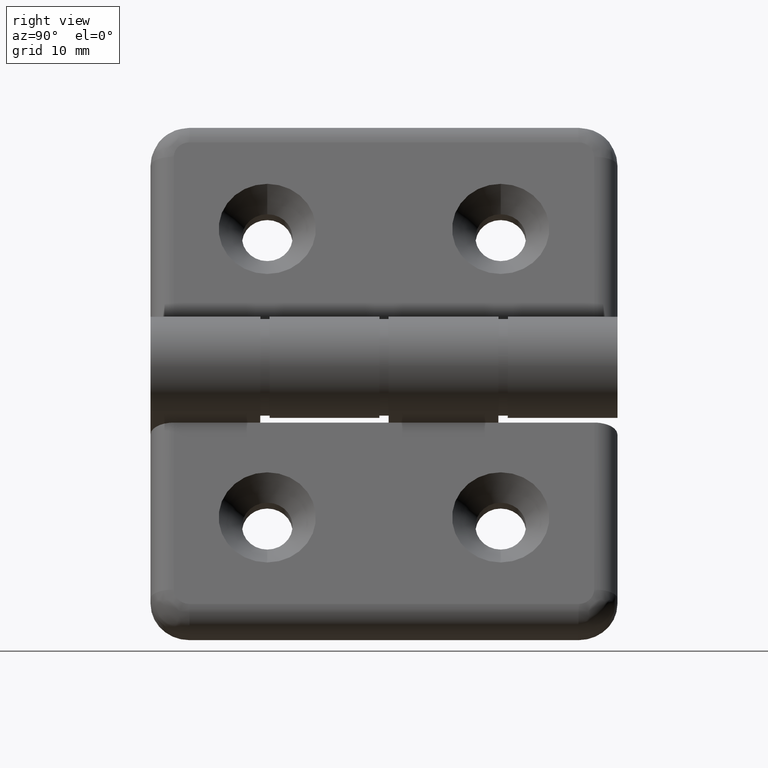
[diagram: clean part render]
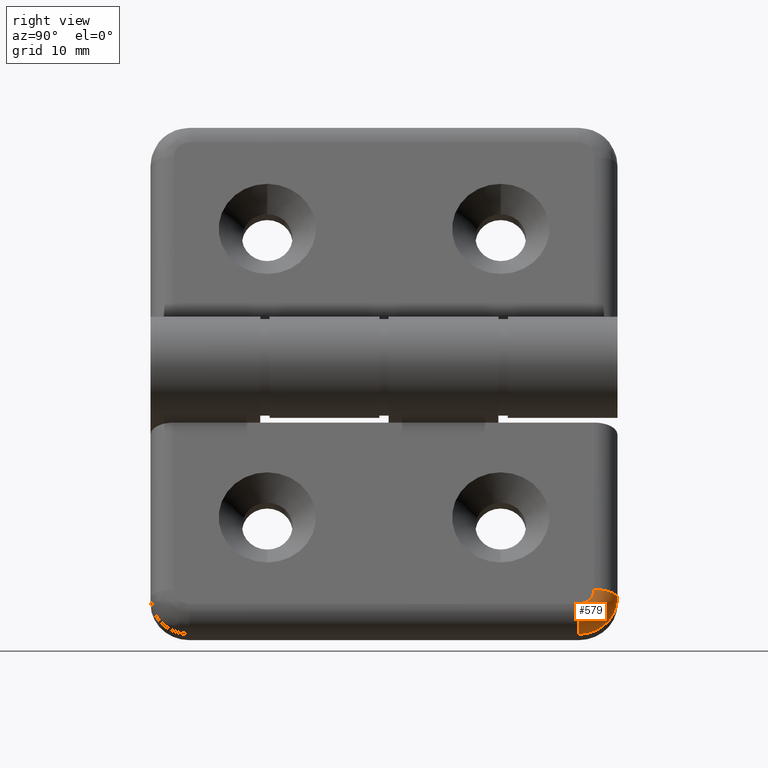
[diagram: same view with one face highlighted and labeled with its STEP entity id]
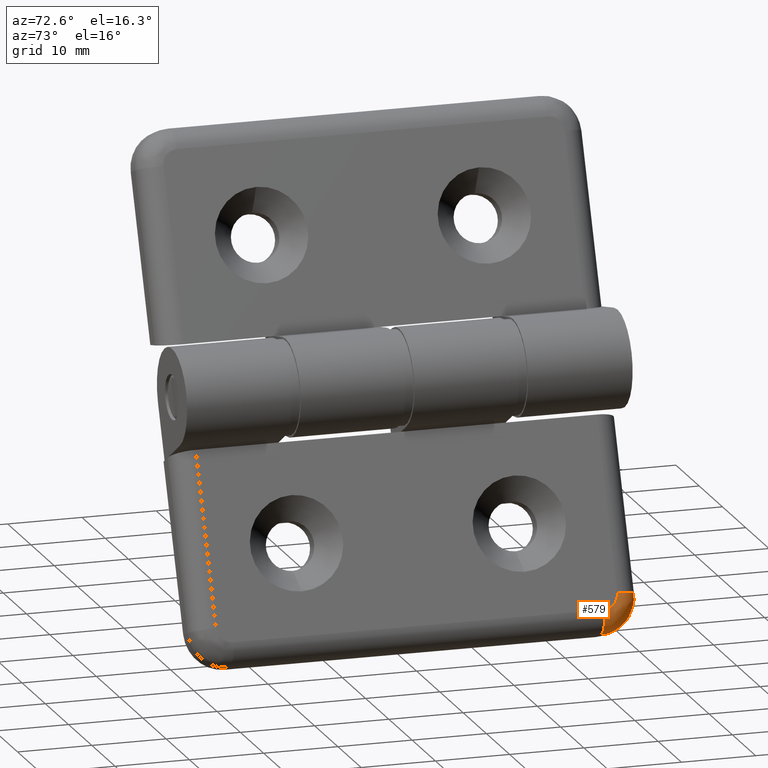
[diagram: same view with one face highlighted and labeled with its STEP entity id]
A machine part, right view. The second image highlights one B-rep face of the part: STEP entity #579.
A second angle (auxiliary view) of the same face is appended — the face is thin or edge-on in the first view.
In plain terms, the highlighted face is a freeform B-spline surface patch.
Its self-contained STEP definition (entity closure, byte-faithful):
#67=(
BOUNDED_SURFACE()
B_SPLINE_SURFACE(2,2,((#932,#933,#934),(#935,#936,#937),(#938,#939,#940)),
 .UNSPECIFIED.,.F.,.F.,.F.)
B_SPLINE_SURFACE_WITH_KNOTS((3,3),(3,3),(-1.5707963267949,4.62592926927149E-17),
(1.5707963267949,3.14159265358979),.UNSPECIFIED.)
GEOMETRIC_REPRESENTATION_ITEM()
RATIONAL_B_SPLINE_SURFACE(((1.,0.707106781186548,1.),(0.707106781186546,
0.499999999999999,0.707106781186546),(1.,0.707106781186548,1.)))
REPRESENTATION_ITEM('')
SURFACE()
);
#186=FACE_OUTER_BOUND('',#227,.T.);
#227=EDGE_LOOP('',(#448,#449,#450,#451));
#284=CIRCLE('',#630,3.);
#285=CIRCLE('',#631,3.00000000000001);
#286=CIRCLE('',#632,2.);
#287=CIRCLE('',#633,5.);
#318=VERTEX_POINT('',#927);
#319=VERTEX_POINT('',#928);
#320=VERTEX_POINT('',#941);
#321=VERTEX_POINT('',#942);
#370=EDGE_CURVE('',#318,#319,#284,.T.);
#373=EDGE_CURVE('',#320,#321,#285,.T.);
#374=EDGE_CURVE('',#321,#319,#286,.T.);
#375=EDGE_CURVE('',#318,#320,#287,.T.);
#448=ORIENTED_EDGE('',*,*,#373,.T.);
#449=ORIENTED_EDGE('',*,*,#374,.T.);
#450=ORIENTED_EDGE('',*,*,#370,.F.);
#451=ORIENTED_EDGE('',*,*,#375,.T.);
#579=ADVANCED_FACE('',(#186),#67,.F.);
#630=AXIS2_PLACEMENT_3D('',#929,#729,#730);
#631=AXIS2_PLACEMENT_3D('',#943,#733,#734);
#632=AXIS2_PLACEMENT_3D('',#944,#735,#736);
#633=AXIS2_PLACEMENT_3D('',#945,#737,#738);
#729=DIRECTION('center_axis',(0.,-1.,0.));
#730=DIRECTION('ref_axis',(1.,0.,0.));
#733=DIRECTION('center_axis',(1.,0.,0.));
#734=DIRECTION('ref_axis',(0.,1.,9.25185853854295E-17));
#735=DIRECTION('center_axis',(0.,1.38777878078145E-16,-1.));
#736=DIRECTION('ref_axis',(0.707106781186547,0.707106781186548,9.8130778667736E-17));
#737=DIRECTION('center_axis',(0.,-1.38777878078145E-16,1.));
#738=DIRECTION('ref_axis',(0.707106781186547,0.707106781186548,1.11022302462516E-16));
#927=CARTESIAN_POINT('',(27.5,55.,2.));
#928=CARTESIAN_POINT('',(24.5,55.,5.));
#929=CARTESIAN_POINT('Origin',(24.5,55.,2.));
#932=CARTESIAN_POINT('Ctrl Pts',(22.5,57.,4.99999999999999));
#933=CARTESIAN_POINT('Ctrl Pts',(24.5,57.,4.99999999999999));
#934=CARTESIAN_POINT('Ctrl Pts',(24.5,55.,4.99999999999999));
#935=CARTESIAN_POINT('Ctrl Pts',(22.5,60.,5.));
#936=CARTESIAN_POINT('Ctrl Pts',(27.5,60.,5.));
#937=CARTESIAN_POINT('Ctrl Pts',(27.5,55.,5.));
#938=CARTESIAN_POINT('Ctrl Pts',(22.5,60.,1.99999999999999));
#939=CARTESIAN_POINT('Ctrl Pts',(27.5,60.,1.99999999999999));
#940=CARTESIAN_POINT('Ctrl Pts',(27.5,55.,1.99999999999999));
#941=CARTESIAN_POINT('',(22.5,60.,1.99999999999999));
#942=CARTESIAN_POINT('',(22.5,57.,5.));
#943=CARTESIAN_POINT('Origin',(22.5,57.,1.99999999999999));
#944=CARTESIAN_POINT('Origin',(22.5,55.,5.));
#945=CARTESIAN_POINT('Origin',(22.5,55.,1.99999999999999));